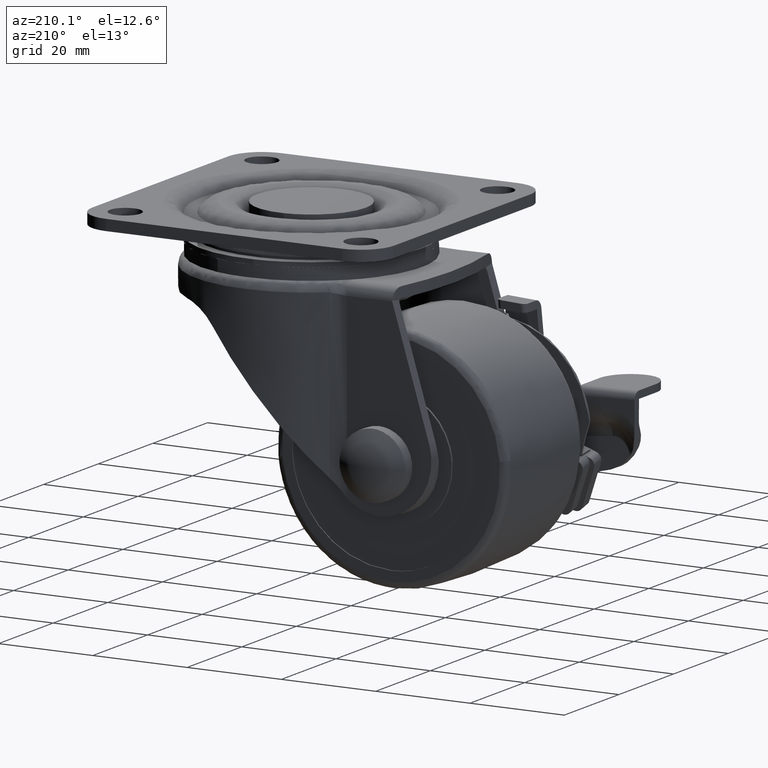
[diagram: clean part render]
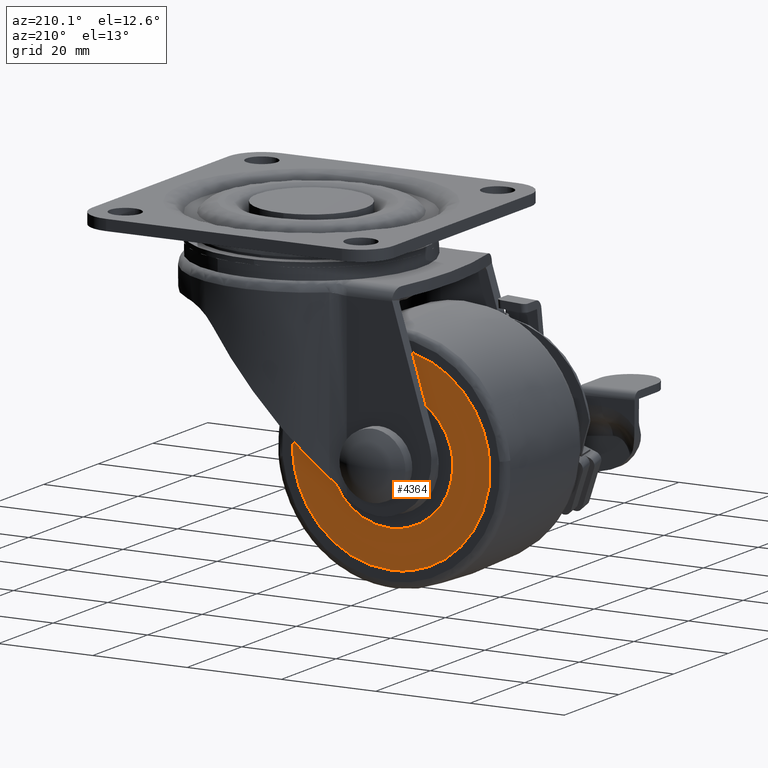
[diagram: same view with one face highlighted and labeled with its STEP entity id]
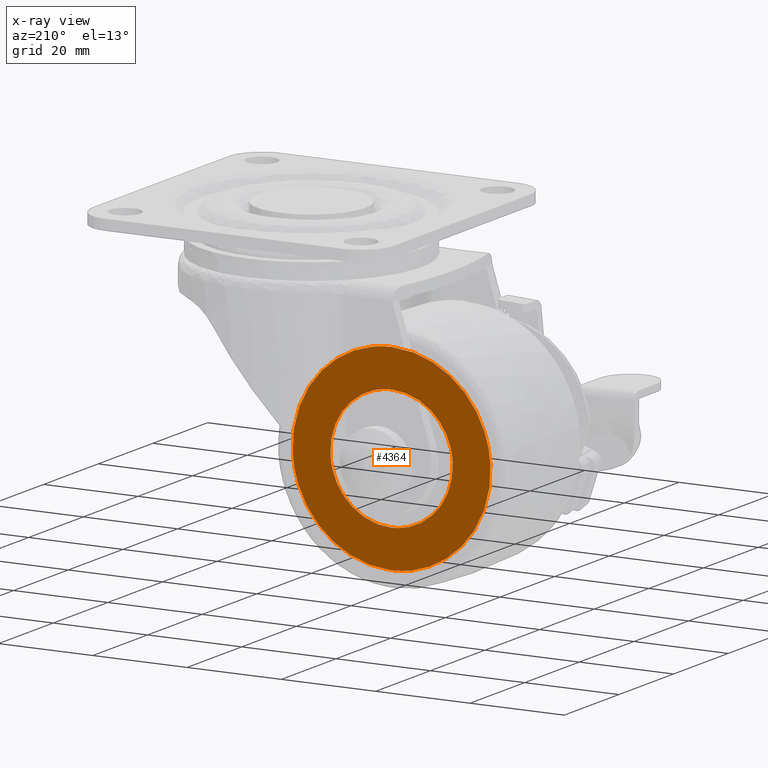
[diagram: x-ray of the same camera — body ghosted, the highlighted face saturated]
A machine part, auxiliary view. The second image highlights one B-rep face of the part: STEP entity #4364.
The next image is the same camera in x-ray: the body ghosted, the highlighted face saturated — about 0% of this face is hidden behind the body in this view.
In plain terms, the highlighted face is a freeform B-spline surface patch.
Its self-contained STEP definition (entity closure, byte-faithful):
#4061=CARTESIAN_POINT('',(-4.039169106289453,13.799999999999921,-44.282017256227512));
#4062=VERTEX_POINT('',#4061);
#4063=CARTESIAN_POINT('',(-25.0,13.800000000000120,-22.0));
#4064=VERTEX_POINT('',#4063);
#4065=CARTESIAN_POINT('',(-4.039169106289453,13.799999999999914,-44.282017256227505));
#4066=CARTESIAN_POINT('',(-4.000000000000001,13.800000000000116,-43.641606989360476));
#4067=CARTESIAN_POINT('',(-4.0,13.800000000000120,-43.0));
#4068=CARTESIAN_POINT('',(-4.0,13.800000000000122,-21.999999999999993));
#4069=CARTESIAN_POINT('',(-25.0,13.800000000000120,-22.0));
#4077=(BOUNDED_CURVE()B_SPLINE_CURVE(2,(#4065,#4066,#4067,#4068,#4069),.UNSPECIFIED.,.F.,.U.)B_SPLINE_CURVE_WITH_KNOTS((3,2,3),(0.239332979314900,0.250000000000000,0.500000000000000),.UNSPECIFIED.)CURVE()GEOMETRIC_REPRESENTATION_ITEM()RATIONAL_B_SPLINE_CURVE((0.976072078263746,0.987502807905565,1.0,0.707106781186547,1.0))REPRESENTATION_ITEM(''));
#4078=EDGE_CURVE('',#4062,#4064,#4077,.T.);
#4080=CARTESIAN_POINT('',(-45.960830893710551,13.799999999999921,-41.717982743772509));
#4081=VERTEX_POINT('',#4080);
#4082=CARTESIAN_POINT('',(-25.0,13.800000000000120,-22.0));
#4083=CARTESIAN_POINT('',(-44.754829363346836,13.800000000000122,-21.999999999999996));
#4084=CARTESIAN_POINT('',(-45.960830893710657,13.800000000000125,-41.717982743772495));
#4092=(BOUNDED_CURVE()B_SPLINE_CURVE(2,(#4082,#4083,#4084),.UNSPECIFIED.,.F.,.U.)B_SPLINE_CURVE_WITH_KNOTS((3,3),(0.500000000000000,0.739332979314900),.UNSPECIFIED.)CURVE()GEOMETRIC_REPRESENTATION_ITEM()RATIONAL_B_SPLINE_CURVE((1.0,0.719603973280982,0.976072078263746))REPRESENTATION_ITEM(''));
#4093=EDGE_CURVE('',#4064,#4081,#4092,.T.);
#4128=CARTESIAN_POINT('',(-25.0,13.800000000000120,-64.0));
#4129=VERTEX_POINT('',#4128);
#4130=CARTESIAN_POINT('',(-25.0,13.800000000000120,-64.0));
#4131=CARTESIAN_POINT('',(-5.245170636653185,13.800000000000122,-64.000000000000014));
#4132=CARTESIAN_POINT('',(-4.039169106289350,13.800000000000118,-44.282017256227512));
#4140=(BOUNDED_CURVE()B_SPLINE_CURVE(2,(#4130,#4131,#4132),.UNSPECIFIED.,.F.,.U.)B_SPLINE_CURVE_WITH_KNOTS((3,3),(0.0,0.239332979314900),.UNSPECIFIED.)CURVE()GEOMETRIC_REPRESENTATION_ITEM()RATIONAL_B_SPLINE_CURVE((1.0,0.719603973280983,0.976072078263746))REPRESENTATION_ITEM(''));
#4141=EDGE_CURVE('',#4129,#4062,#4140,.T.);
#4147=CARTESIAN_POINT('',(-45.960830893710551,13.799999999999910,-41.717982743772509));
#4148=CARTESIAN_POINT('',(-46.000000000000007,13.800000000000123,-42.358393010639531));
#4149=CARTESIAN_POINT('',(-46.0,13.800000000000120,-43.0));
#4150=CARTESIAN_POINT('',(-46.000000000000014,13.800000000000122,-64.0));
#4151=CARTESIAN_POINT('',(-25.0,13.800000000000120,-64.0));
#4159=(BOUNDED_CURVE()B_SPLINE_CURVE(2,(#4147,#4148,#4149,#4150,#4151),.UNSPECIFIED.,.F.,.U.)B_SPLINE_CURVE_WITH_KNOTS((3,2,3),(0.739332979314900,0.750000000000000,1.0),.UNSPECIFIED.)CURVE()GEOMETRIC_REPRESENTATION_ITEM()RATIONAL_B_SPLINE_CURVE((0.976072078263746,0.987502807905565,1.0,0.707106781186547,1.0))REPRESENTATION_ITEM(''));
#4160=EDGE_CURVE('',#4081,#4129,#4159,.T.);
#4287=CARTESIAN_POINT('',(-48.097383133493011,13.800000000000120,-19.902100081404139));
#4288=CARTESIAN_POINT('',(-48.097383133493011,13.800000000000120,-66.097901045123635));
#4289=CARTESIAN_POINT('',(-1.902617617525511,13.800000000000120,-19.902100081404150));
#4290=CARTESIAN_POINT('',(-1.902617617525511,13.800000000000120,-66.097901045123635));
#4291=B_SPLINE_SURFACE_WITH_KNOTS('',1,1,((#4287,#4289),(#4288,#4290)),.UNSPECIFIED.,.F.,.F.,.U.,(2,2),(2,2),(0.0,46.195800963719492),(0.0,46.194765515967497),.UNSPECIFIED.);
#4292=ORIENTED_EDGE('',*,*,#4160,.F.);
#4293=ORIENTED_EDGE('',*,*,#4093,.F.);
#4294=ORIENTED_EDGE('',*,*,#4078,.F.);
#4295=ORIENTED_EDGE('',*,*,#4141,.F.);
#4296=EDGE_LOOP('',(#4292,#4293,#4294,#4295));
#4297=FACE_OUTER_BOUND('',#4296,.T.);
#4298=CARTESIAN_POINT('',(-25.0,13.800000000000120,-30.0));
#4299=VERTEX_POINT('',#4298);
#4300=CARTESIAN_POINT('',(-37.975753832809467,13.800000000000120,-42.206392748418097));
#4301=VERTEX_POINT('',#4300);
#4302=CARTESIAN_POINT('',(-25.0,13.800000000000120,-30.0));
#4303=CARTESIAN_POINT('',(-37.229201306807852,13.800000000000123,-30.000000000000661));
#4304=CARTESIAN_POINT('',(-37.975753832809481,13.800000000000120,-42.206392748418097));
#4312=(BOUNDED_CURVE()B_SPLINE_CURVE(2,(#4302,#4303,#4304),.UNSPECIFIED.,.F.,.U.)B_SPLINE_CURVE_WITH_KNOTS((3,3),(0.500000000000000,0.739333278225329),.UNSPECIFIED.)CURVE()GEOMETRIC_REPRESENTATION_ITEM()RATIONAL_B_SPLINE_CURVE((1.0,0.719603623085632,0.976072718886629))REPRESENTATION_ITEM(''));
#4313=EDGE_CURVE('',#4299,#4301,#4312,.T.);
#4314=ORIENTED_EDGE('',*,*,#4313,.T.);
#4315=CARTESIAN_POINT('',(-25.0,13.800000000000120,-55.999999999999993));
#4316=VERTEX_POINT('',#4315);
#4317=CARTESIAN_POINT('',(-37.975753832809481,13.800000000000120,-42.206392748418097));
#4318=CARTESIAN_POINT('',(-37.999999999978549,13.800000000000123,-42.602825991617294));
#4319=CARTESIAN_POINT('',(-37.999999999978883,13.800000000000120,-43.000000000001279));
#4320=CARTESIAN_POINT('',(-37.999999999989754,13.800000000000122,-56.000000000000625));
#4321=CARTESIAN_POINT('',(-25.0,13.800000000000120,-55.999999999999993));
#4329=(BOUNDED_CURVE()B_SPLINE_CURVE(2,(#4317,#4318,#4319,#4320,#4321),.UNSPECIFIED.,.F.,.U.)B_SPLINE_CURVE_WITH_KNOTS((3,2,3),(0.739333278225329,0.750000000000000,1.0),.UNSPECIFIED.)CURVE()GEOMETRIC_REPRESENTATION_ITEM()RATIONAL_B_SPLINE_CURVE((0.976072718886629,0.987503158100916,1.0,0.707106781186547,1.0))REPRESENTATION_ITEM(''));
#4330=EDGE_CURVE('',#4301,#4316,#4329,.T.);
#4331=ORIENTED_EDGE('',*,*,#4330,.T.);
#4332=CARTESIAN_POINT('',(-12.024246167190521,13.800000000000120,-43.793607251581911));
#4333=VERTEX_POINT('',#4332);
#4334=CARTESIAN_POINT('',(-25.0,13.800000000000120,-55.999999999999993));
#4335=CARTESIAN_POINT('',(-12.770798693192150,13.800000000000123,-55.999999999999332));
#4336=CARTESIAN_POINT('',(-12.024246167190521,13.800000000000123,-43.793607251581911));
#4344=(BOUNDED_CURVE()B_SPLINE_CURVE(2,(#4334,#4335,#4336),.UNSPECIFIED.,.F.,.U.)B_SPLINE_CURVE_WITH_KNOTS((3,3),(0.0,0.239333278225329),.UNSPECIFIED.)CURVE()GEOMETRIC_REPRESENTATION_ITEM()RATIONAL_B_SPLINE_CURVE((1.0,0.719603623085632,0.976072718886628))REPRESENTATION_ITEM(''));
#4345=EDGE_CURVE('',#4316,#4333,#4344,.T.);
#4346=ORIENTED_EDGE('',*,*,#4345,.T.);
#4347=CARTESIAN_POINT('',(-12.024246167190521,13.800000000000123,-43.793607251581911));
#4348=CARTESIAN_POINT('',(-12.000000000021448,13.800000000000123,-43.397174008382706));
#4349=CARTESIAN_POINT('',(-12.000000000021110,13.800000000000120,-42.999999999998707));
#4350=CARTESIAN_POINT('',(-12.000000000010235,13.800000000000122,-29.999999999999371));
#4351=CARTESIAN_POINT('',(-25.0,13.800000000000120,-30.0));
#4359=(BOUNDED_CURVE()B_SPLINE_CURVE(2,(#4347,#4348,#4349,#4350,#4351),.UNSPECIFIED.,.F.,.U.)B_SPLINE_CURVE_WITH_KNOTS((3,2,3),(0.239333278225329,0.250000000000000,0.500000000000000),.UNSPECIFIED.)CURVE()GEOMETRIC_REPRESENTATION_ITEM()RATIONAL_B_SPLINE_CURVE((0.976072718886628,0.987503158100916,1.0,0.707106781186547,1.0))REPRESENTATION_ITEM(''));
#4360=EDGE_CURVE('',#4333,#4299,#4359,.T.);
#4361=ORIENTED_EDGE('',*,*,#4360,.T.);
#4362=EDGE_LOOP('',(#4314,#4331,#4346,#4361));
#4363=FACE_BOUND('',#4362,.T.);
#4364=ADVANCED_FACE('',(#4297,#4363),#4291,.F.);